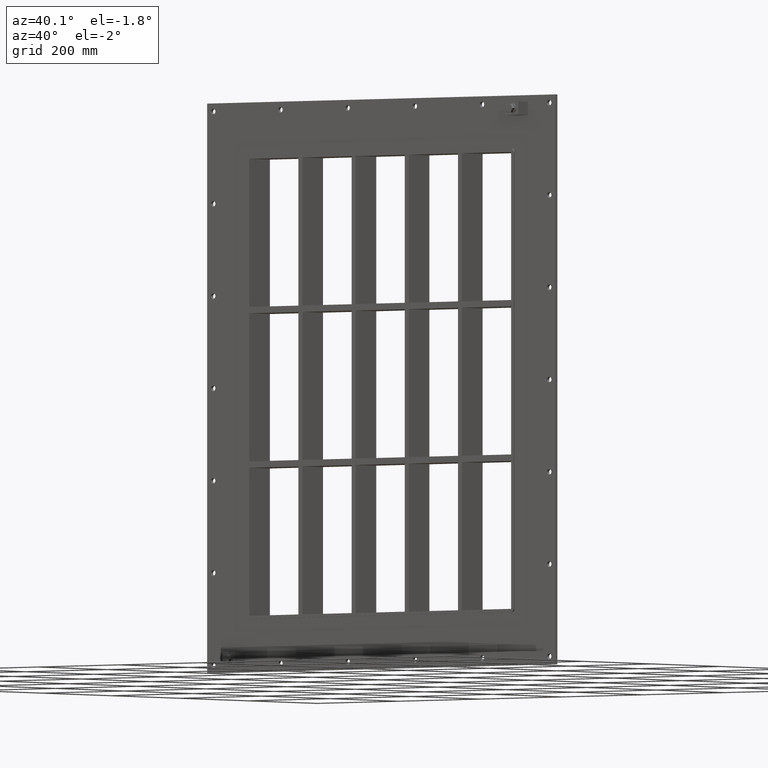
[diagram: clean part render]
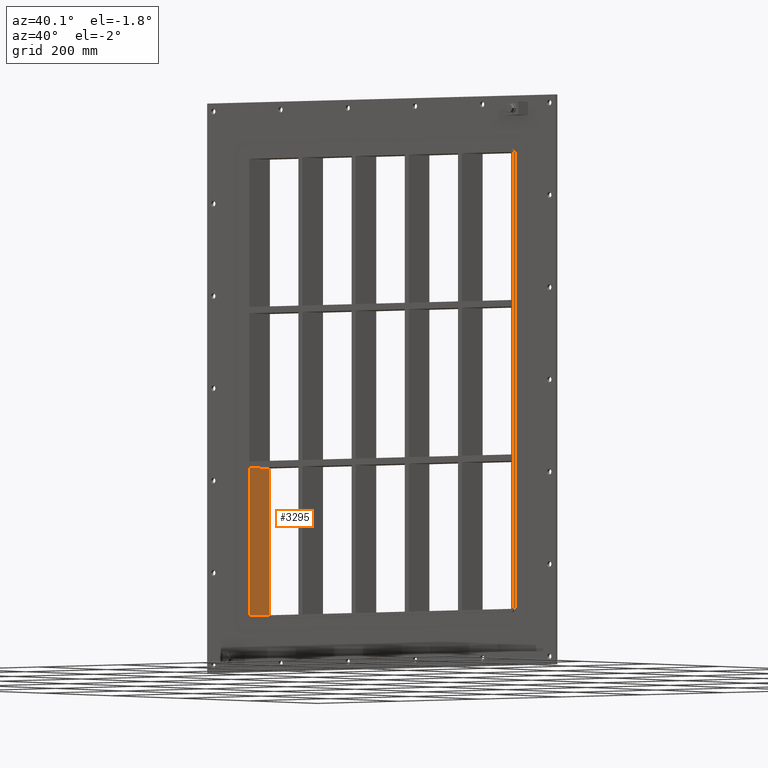
[diagram: same view with one face highlighted and labeled with its STEP entity id]
A machine part, auxiliary view. The second image highlights one B-rep face of the part: STEP entity #3295.
In plain terms, the highlighted planar face has unit normal (-1, 0, 0).
Its self-contained STEP definition (entity closure, byte-faithful):
#1686=CARTESIAN_POINT('',(-321.24999999999721,57.0,-151.00000000001046));
#1687=VERTEX_POINT('',#1686);
#1688=CARTESIAN_POINT('',(-321.24999999999994,57.0,-429.00000000000023));
#1689=VERTEX_POINT('',#1688);
#1690=CARTESIAN_POINT('',(-321.25,57.0,-151.00000000001046));
#1691=DIRECTION('',(0.0,0.0,-1.0));
#1692=VECTOR('',#1691,277.99999999998977);
#1693=LINE('',#1690,#1692);
#1694=EDGE_CURVE('',#1687,#1689,#1693,.T.);
#2539=CARTESIAN_POINT('',(-321.24999999999721,-3.0,-151.00000000001046));
#2540=VERTEX_POINT('',#2539);
#2555=CARTESIAN_POINT('',(-321.24999999999994,-3.0,-429.00000000000023));
#2556=VERTEX_POINT('',#2555);
#2563=CARTESIAN_POINT('',(-321.25,-3.0,-429.00000000000023));
#2564=DIRECTION('',(0.0,0.0,1.0));
#2565=VECTOR('',#2564,277.99999999998977);
#2566=LINE('',#2563,#2565);
#2567=EDGE_CURVE('',#2556,#2540,#2566,.T.);
#2731=CARTESIAN_POINT('',(-321.25,57.000000000000007,-151.00000000001049));
#2732=DIRECTION('',(0.0,-1.0,0.0));
#2733=VECTOR('',#2732,60.000000000000007);
#2734=LINE('',#2731,#2733);
#2735=EDGE_CURVE('',#1687,#2540,#2734,.T.);
#2842=CARTESIAN_POINT('',(-321.25,-3.0,-429.00000000000023));
#2843=DIRECTION('',(0.0,1.0,0.0));
#2844=VECTOR('',#2843,60.0);
#2845=LINE('',#2842,#2844);
#2846=EDGE_CURVE('',#2556,#1689,#2845,.T.);
#3284=CARTESIAN_POINT('',(-321.25,0.0,-429.00000000000023));
#3285=DIRECTION('',(-1.0,0.0,0.0));
#3286=DIRECTION('',(0.0,0.0,1.0));
#3287=AXIS2_PLACEMENT_3D('',#3284,#3285,#3286);
#3288=PLANE('',#3287);
#3289=ORIENTED_EDGE('',*,*,#2735,.T.);
#3290=ORIENTED_EDGE('',*,*,#2567,.F.);
#3291=ORIENTED_EDGE('',*,*,#2846,.T.);
#3292=ORIENTED_EDGE('',*,*,#1694,.F.);
#3293=EDGE_LOOP('',(#3289,#3290,#3291,#3292));
#3294=FACE_OUTER_BOUND('',#3293,.T.);
#3295=ADVANCED_FACE('',(#3294),#3288,.F.);